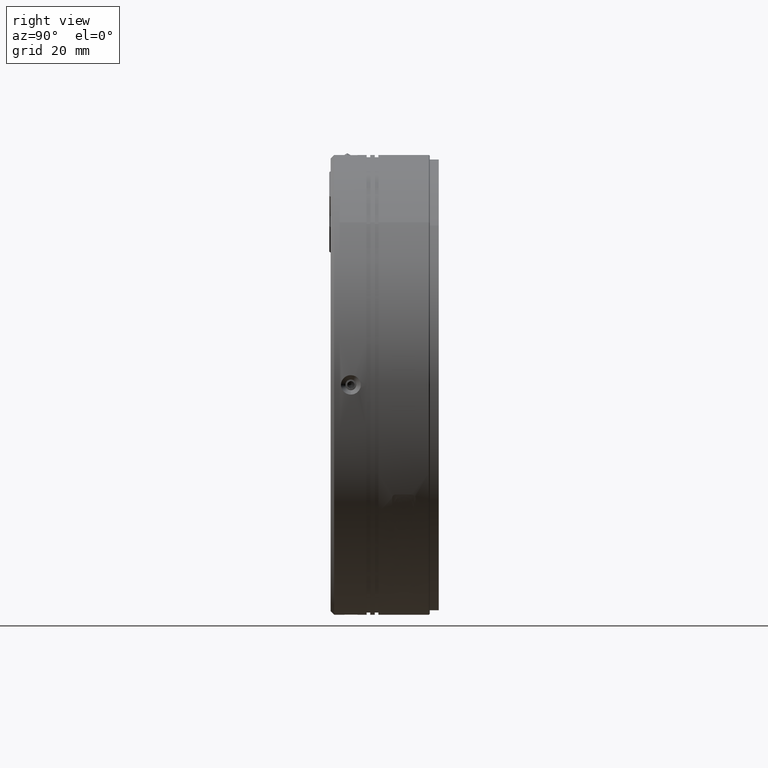
[diagram: clean part render]
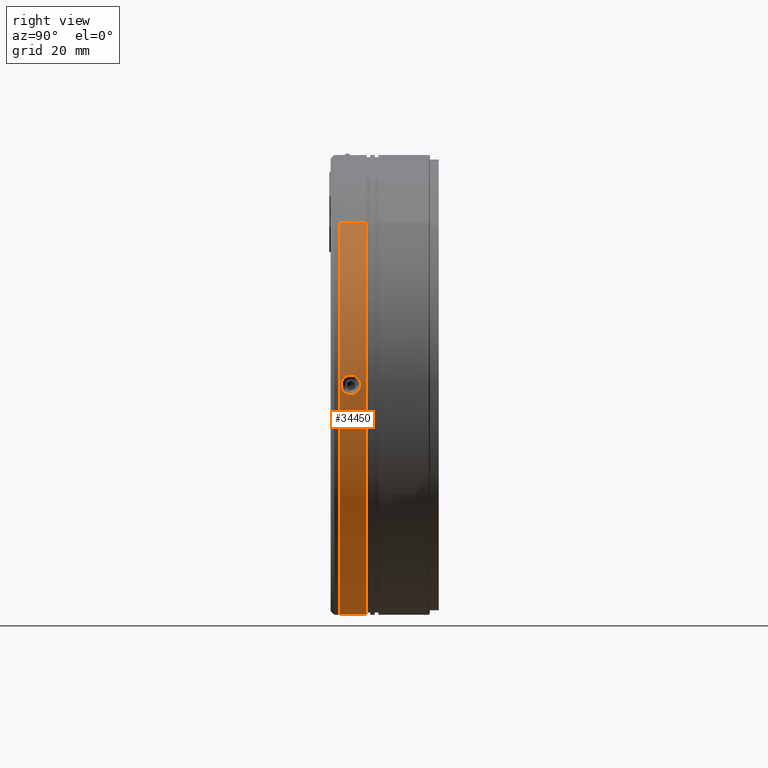
[diagram: same view with one face highlighted and labeled with its STEP entity id]
A machine part, right view. The second image highlights one B-rep face of the part: STEP entity #34450.
In plain terms, the highlighted cylindrical surface (partial cylindrical patch) has radius 51 mm, axis along (0, 1, -0).
Its self-contained STEP definition (entity closure, byte-faithful):
#259 = CARTESIAN_POINT ( 'NONE',  ( -2.154472316353459100, 5.763396143676595300, -50.95447231635380100 ) ) ;
#604 = CARTESIAN_POINT ( 'NONE',  ( -0.2852268073737361200, 3.721661594997705900, -50.99939401691447200 ) ) ;
#919 = CARTESIAN_POINT ( 'NONE',  ( 1.939828432637411100, 4.939502459371927200, -50.96312275751676400 ) ) ;
#3167 = CARTESIAN_POINT ( 'NONE',  ( 50.96312404013315200, 6.874862725587961500, 1.939794906951454800 ) ) ;
#3476 = CARTESIAN_POINT ( 'NONE',  ( 50.99538983723117300, 7.993454313968416400, -0.6982968416029308200 ) ) ;
#4078 = CARTESIAN_POINT ( 'NONE',  ( 50.98894425759989000, 3.989773638397464700, -1.093377146963826900 ) ) ;
#4397 = CARTESIAN_POINT ( 'NONE',  ( 50.97404499597960400, 4.461387977884344400, 1.629917448090237200 ) ) ;
#5007 = EDGE_LOOP ( 'NONE', ( #67706, #91935, #29423, #58132 ) ) ;
#5067 = CARTESIAN_POINT ( 'NONE',  ( 0.5648198454437068900, 8.035159317894237300, -50.99706386613183900 ) ) ;
#5393 = CARTESIAN_POINT ( 'NONE',  ( -1.873114926607444900, 7.003366693501809500, -50.96564966620793100 ) ) ;
#7616 = CARTESIAN_POINT ( 'NONE',  ( -2.154472316353456000, 5.907147174518511800, -50.95447231635380100 ) ) ;
#7751 = CYLINDRICAL_SURFACE ( 'NONE', #67334, 51.00000000000002100 ) ;
#7896 = CARTESIAN_POINT ( 'NONE',  ( -36.06244584051352600, 9.407147174518513600, -36.06244584051400900 ) ) ;
#7934 = CARTESIAN_POINT ( 'NONE',  ( 0.1403220791344371200, 3.707017445453936400, -51.00000536473358900 ) ) ;
#8228 = CARTESIAN_POINT ( 'NONE',  ( 2.154472316354134200, 5.619634756492583700, -50.95447231635381500 ) ) ;
#9860 = CARTESIAN_POINT ( 'NONE',  ( 3.317125359626537400E-013, 3.407147174518513600, 2.765813746307307400E-015 ) ) ;
#10440 = CARTESIAN_POINT ( 'NONE',  ( 50.97106247840371700, 7.240207170799828300, 1.719538270457489100 ) ) ;
#10751 = CARTESIAN_POINT ( 'NONE',  ( 50.98854209128253200, 7.811771279128765700, -1.087304250711857800 ) ) ;
#11047 = CARTESIAN_POINT ( 'NONE',  ( 50.95447231635414200, 5.763396143676660100, -2.154472316353622600 ) ) ;
#11343 = CARTESIAN_POINT ( 'NONE',  ( 50.99706386613215200, 3.779135031142793800, -0.5648198454432190600 ) ) ;
#11668 = CARTESIAN_POINT ( 'NONE',  ( 50.96564966620827200, 4.810927655535165200, 1.873114926607935000 ) ) ;
#12348 = CARTESIAN_POINT ( 'NONE',  ( 0.1441949763679270800, 8.107015667457769600, -50.99999456174028000 ) ) ;
#12655 = CARTESIAN_POINT ( 'NONE',  ( -2.098892007227033400, 6.479478496058003900, -50.95690252090638200 ) ) ;
#12774 = AXIS2_PLACEMENT_3D ( 'NONE', #32687, #83469, #39995 ) ;
#14741 = CIRCLE ( 'NONE', #12774, 51.00000000000002100 ) ;
#14883 = CARTESIAN_POINT ( 'NONE',  ( -2.045849818407261100, 5.202980060670240500, -50.95897678261917500 ) ) ;
#15212 = CARTESIAN_POINT ( 'NONE',  ( 0.5627570195043855000, 3.778616108468916900, -50.99708475629208200 ) ) ;
#17181 = DIRECTION ( 'NONE',  ( 1.679007573354061900E-019, 1.000000000000000000, -1.540743955509788700E-033 ) ) ;
#17794 = CARTESIAN_POINT ( 'NONE',  ( 50.98293755735451100, 7.658280343859246400, 1.333799639047215300 ) ) ;
#18117 = CARTESIAN_POINT ( 'NONE',  ( 50.98001507630412700, 7.557870552635795200, -1.431068467805254500 ) ) ;
#18706 = CARTESIAN_POINT ( 'NONE',  ( 50.99999456174060700, 3.707278681579249600, -0.1441949763674427500 ) ) ;
#19029 = CARTESIAN_POINT ( 'NONE',  ( 50.95690252090671600, 5.334815852978958400, 2.098892007227542800 ) ) ;
#19108 = CIRCLE ( 'NONE', #46445, 51.00000000000002100 ) ;
#19379 = CARTESIAN_POINT ( 'NONE',  ( 2.086788079380743600, 6.472420659682517100, -50.95729629890006200 ) ) ;
#19692 = CARTESIAN_POINT ( 'NONE',  ( -0.2845645091286919700, 8.092673076609164800, -50.99939580175028900 ) ) ;
#20029 = CARTESIAN_POINT ( 'NONE',  ( -2.154472316353456000, 5.907147174518511800, -50.95447231635380100 ) ) ;
#22275 = CARTESIAN_POINT ( 'NONE',  ( -1.874645505294986900, 4.813598729787168300, -50.96559355359598700 ) ) ;
#22589 = CARTESIAN_POINT ( 'NONE',  ( 0.9621037295044077000, 3.933365850457388700, -50.99109490434396000 ) ) ;
#25149 = CARTESIAN_POINT ( 'NONE',  ( 50.99532744252931600, 7.991849911854710200, 0.7025358010626433500 ) ) ;
#25457 = CARTESIAN_POINT ( 'NONE',  ( 50.97110671548087900, 7.241926942616546000, -1.718221646358410600 ) ) ;
#25682 = B_SPLINE_CURVE_WITH_KNOTS ( 'NONE', 3,
 ( #7616, #259, #79453, #58410, #14883, #65754, #22275, #73059, #29593, #80385, #36891, #87628, #44181, #604, #51476, #7934, #58742, #15212, #66081, #22589, #73377, #29906, #80712, #37218, #87974, #44500, #919, #51786, #8228, #59050 ),
 .UNSPECIFIED., .F., .F.,
 ( 4, 2, 2, 2, 2, 2, 2, 2, 2, 2, 2, 2, 2, 2, 4 ),
 ( 6.396903074562316500E-017, 0.0004268718552336658400, 0.0008537437104672677100, 0.001280615565700869500, 0.001707487420934471500, 0.002561231131401674000, 0.002988102986635275500, 0.003414974841868877000, 0.003841846697102478900, 0.004268718552336080900, 0.004695590407569683200, 0.005122462262803285600, 0.005549334118036888800, 0.005976205973270491200, 0.006829949683737694200 ),
 .UNSPECIFIED. ) ;
#25762 = CARTESIAN_POINT ( 'NONE',  ( 50.95729629890040300, 5.341873689354510900, -2.086788079380240900 ) ) ;
#26069 = CARTESIAN_POINT ( 'NONE',  ( 50.99939580175062300, 3.721621272427849000, 0.2845645091291707000 ) ) ;
#26372 = CARTESIAN_POINT ( 'NONE',  ( 50.95447231635412100, 5.907147174518511800, 2.154472316353976100 ) ) ;
#26713 = CARTESIAN_POINT ( 'NONE',  ( 1.939794906951597600, 6.874862725587965100, -50.96312404013281100 ) ) ;
#26897 = VERTEX_POINT ( 'NONE', #7896 ) ;
#27034 = CARTESIAN_POINT ( 'NONE',  ( -0.6982968416028165800, 7.993454313968391600, -50.99538983723083900 ) ) ;
#29423 = ORIENTED_EDGE ( 'NONE', *, *, #44502, .T. ) ;
#29438 = LINE ( 'NONE', #67311, #46458 ) ;
#29593 = CARTESIAN_POINT ( 'NONE',  ( -1.629677659519799700, 4.461215960852939600, -50.97405111024246300 ) ) ;
#29906 = CARTESIAN_POINT ( 'NONE',  ( 1.320949418007542100, 4.163359933027793500, -50.98302411355312100 ) ) ;
#31844 = VERTEX_POINT ( 'NONE', #68629 ) ;
#32138 = CARTESIAN_POINT ( 'NONE',  ( 50.95447231635412100, 5.907147174518511800, 2.154472316353976100 ) ) ;
#32464 = CARTESIAN_POINT ( 'NONE',  ( 50.99939401691477800, 8.092632754039303900, 0.2852268073743209900 ) ) ;
#32687 = CARTESIAN_POINT ( 'NONE',  ( 3.317135433671977200E-013, 9.407147174518513600, 2.765813746307307400E-015 ) ) ;
#32778 = CARTESIAN_POINT ( 'NONE',  ( 50.96312275751709800, 6.874791889665118600, -1.939828432636891500 ) ) ;
#33066 = CARTESIAN_POINT ( 'NONE',  ( 50.96312404013316000, 4.939431623449064700, -1.939794906951090500 ) ) ;
#33359 = CARTESIAN_POINT ( 'NONE',  ( 50.99538983723116600, 3.820840035068613800, 0.6982968416032950800 ) ) ;
#34027 = CARTESIAN_POINT ( 'NONE',  ( 1.719538270457630700, 7.240207170799836300, -50.97106247840337500 ) ) ;
#34344 = CARTESIAN_POINT ( 'NONE',  ( -1.087304250711743200, 7.811771279128739000, -50.98854209128219100 ) ) ;
#34450 = ADVANCED_FACE ( 'NONE', ( #72553, #91863, #36235 ), #7751, .T. ) ;
#36235 = FACE_BOUND ( 'NONE', #36972, .T. ) ;
#36891 = CARTESIAN_POINT ( 'NONE',  ( -1.093377146963598700, 3.989773638397421200, -50.98894425759952000 ) ) ;
#36972 = EDGE_LOOP ( 'NONE', ( #59850, #61777 ) ) ;
#37218 = CARTESIAN_POINT ( 'NONE',  ( 1.629917448090406800, 4.461387977884367500, -50.97404499597929100 ) ) ;
#37283 = EDGE_CURVE ( 'NONE', #73709, #42928, #25682, .T. ) ;
#37813 = B_SPLINE_CURVE_WITH_KNOTS ( 'NONE', 3,
 ( #69205, #11047, #46707, #25762, #76556, #33066, #83838, #40383, #91116, #47640, #4078, #54888, #11343, #62243, #18706, #69522, #26069, #76880, #33359, #84148, #40701, #91450, #47962, #4397, #55207, #11668, #62555, #19029, #69837, #26372 ),
 .UNSPECIFIED., .F., .F.,
 ( 4, 2, 2, 2, 2, 2, 2, 2, 2, 2, 2, 2, 2, 2, 4 ),
 ( 8.673617379884035500E-019, 0.0004268718552336112500, 0.0008537437104672216400, 0.001280615565700831800, 0.001707487420934442000, 0.002561231131401662700, 0.002988102986635273800, 0.003414974841868884800, 0.003841846697102495400, 0.004268718552336106900, 0.004695590407569717900, 0.005122462262803328900, 0.005549334118036940000, 0.005976205973270551900, 0.006829949683737773100 ),
 .UNSPECIFIED. ) ;
#38419 = VERTEX_POINT ( 'NONE', #76494 ) ;
#39134 = LINE ( 'NONE', #92179, #56096 ) ;
#39461 = CARTESIAN_POINT ( 'NONE',  ( 50.95505573655418600, 6.192683583496547700, 2.140800193111952700 ) ) ;
#39780 = CARTESIAN_POINT ( 'NONE',  ( 51.00000536473391600, 8.107276903583095200, -0.1403220791338598800 ) ) ;
#39995 = DIRECTION ( 'NONE',  ( -0.7071067811865460200, 0.0000000000000000000, -0.7071067811865489100 ) ) ;
#40079 = CARTESIAN_POINT ( 'NONE',  ( 50.95447231635413500, 6.194638880233036100, -2.154472316353621200 ) ) ;
#40383 = CARTESIAN_POINT ( 'NONE',  ( 50.97106247840371700, 4.574087178237195200, -1.719538270457126000 ) ) ;
#40698 = CARTESIAN_POINT ( 'NONE',  ( 3.317125359626537400E-013, 3.407147174518513600, 2.765813746307307400E-015 ) ) ;
#40701 = CARTESIAN_POINT ( 'NONE',  ( 50.98854209128251800, 4.002523069908257900, 1.087304250712223000 ) ) ;
#41048 = CARTESIAN_POINT ( 'NONE',  ( 2.154472316354134600, 6.050898205360368800, -50.95447231635380800 ) ) ;
#41328 = CARTESIAN_POINT ( 'NONE',  ( 1.333799639047349200, 7.658280343859257000, -50.98293755735417000 ) ) ;
#41641 = CARTESIAN_POINT ( 'NONE',  ( -1.431068467805141100, 7.557870552635762400, -50.98001507630377900 ) ) ;
#41956 = CARTESIAN_POINT ( 'NONE',  ( -2.154472316353456000, 5.907147174518511800, -50.95447231635380100 ) ) ;
#42150 = EDGE_CURVE ( 'NONE', #45964, #51609, #37813, .T. ) ;
#42928 = VERTEX_POINT ( 'NONE', #58137 ) ;
#43749 = ORIENTED_EDGE ( 'NONE', *, *, #77687, .T. ) ;
#44181 = CARTESIAN_POINT ( 'NONE',  ( -0.5648198454429918000, 3.779135031142776900, -50.99706386613184600 ) ) ;
#44500 = CARTESIAN_POINT ( 'NONE',  ( 1.873114926608095500, 4.810927655535182100, -50.96564966620794500 ) ) ;
#44502 = EDGE_CURVE ( 'NONE', #82853, #26897, #39134, .T. ) ;
#45964 = VERTEX_POINT ( 'NONE', #88942 ) ;
#46273 = EDGE_CURVE ( 'NONE', #31844, #82853, #19108, .T. ) ;
#46428 = DIRECTION ( 'NONE',  ( -0.7071067811865460200, 0.0000000000000000000, -0.7071067811865489100 ) ) ;
#46445 = AXIS2_PLACEMENT_3D ( 'NONE', #40698, #91447, #47961 ) ;
#46458 = VECTOR ( 'NONE', #52695, 1000.000000000000000 ) ;
#46707 = CARTESIAN_POINT ( 'NONE',  ( 50.95505573655422200, 5.621610765540476800, -2.140800193111596100 ) ) ;
#46724 = CARTESIAN_POINT ( 'NONE',  ( 50.95897678261949400, 6.611314288366672900, 2.045849818407819800 ) ) ;
#47020 = CARTESIAN_POINT ( 'NONE',  ( 50.99708475629242300, 8.035678240568119100, -0.5627570195038171800 ) ) ;
#47640 = CARTESIAN_POINT ( 'NONE',  ( 50.98293755735450400, 4.156014005177781600, -1.333799639046848700 ) ) ;
#47961 = DIRECTION ( 'NONE',  ( -0.7071067811865460200, 0.0000000000000000000, -0.7071067811865489100 ) ) ;
#47962 = CARTESIAN_POINT ( 'NONE',  ( 50.98001507630411300, 4.256423796401226600, 1.431068467805620200 ) ) ;
#48630 = CARTESIAN_POINT ( 'NONE',  ( 0.7025358010627704700, 7.991849911854719000, -50.99532744252899600 ) ) ;
#48936 = CARTESIAN_POINT ( 'NONE',  ( -1.718221646358286000, 7.241926942616501600, -50.97110671548055200 ) ) ;
#51476 = CARTESIAN_POINT ( 'NONE',  ( -0.1441949763672226700, 3.707278681579251300, -50.99999456174029400 ) ) ;
#51609 = VERTEX_POINT ( 'NONE', #88772 ) ;
#51786 = CARTESIAN_POINT ( 'NONE',  ( 2.098892007227693300, 5.334815852978971800, -50.95690252090638200 ) ) ;
#52695 = DIRECTION ( 'NONE',  ( 1.679007573354061700E-019, 1.000000000000000000, -1.540743955509788700E-033 ) ) ;
#52857 = EDGE_LOOP ( 'NONE', ( #43749, #79188 ) ) ;
#53983 = CARTESIAN_POINT ( 'NONE',  ( 50.96559355359630000, 7.000695619249762900, 1.874645505295554600 ) ) ;
#54296 = CARTESIAN_POINT ( 'NONE',  ( 50.99109490434430100, 7.880928498579664600, -0.9621037295038525900 ) ) ;
#54888 = CARTESIAN_POINT ( 'NONE',  ( 50.99532744252933000, 3.822444437182321400, -0.7025358010622772000 ) ) ;
#55207 = CARTESIAN_POINT ( 'NONE',  ( 50.97110671548087200, 4.572367406420478500, 1.718221646358771200 ) ) ;
#55869 = CARTESIAN_POINT ( 'NONE',  ( 0.2852268073744432300, 8.092632754039314600, -50.99939401691446500 ) ) ;
#56096 = VECTOR ( 'NONE', #62953, 1000.000000000000000 ) ;
#56173 = CARTESIAN_POINT ( 'NONE',  ( -1.939828432636754500, 6.874791889665061700, -50.96312275751674300 ) ) ;
#58132 = ORIENTED_EDGE ( 'NONE', *, *, #79877, .T. ) ;
#58137 = CARTESIAN_POINT ( 'NONE',  ( 2.154472316354124000, 5.907147174518511800, -50.95447231635380100 ) ) ;
#58410 = CARTESIAN_POINT ( 'NONE',  ( -2.086788079380045100, 5.341873689354396300, -50.95729629890004700 ) ) ;
#58742 = CARTESIAN_POINT ( 'NONE',  ( 0.2845645091293820800, 3.721621272427863700, -50.99939580175028900 ) ) ;
#59050 = CARTESIAN_POINT ( 'NONE',  ( 2.154472316354124000, 5.907147174518511800, -50.95447231635380100 ) ) ;
#59850 = ORIENTED_EDGE ( 'NONE', *, *, #79439, .T. ) ;
#61301 = CARTESIAN_POINT ( 'NONE',  ( 50.97405111024278300, 7.353078388184011200, 1.629677659520386600 ) ) ;
#61614 = CARTESIAN_POINT ( 'NONE',  ( 50.98302411355346900, 7.650934416009262100, -1.320949418006999800 ) ) ;
#61777 = ORIENTED_EDGE ( 'NONE', *, *, #37283, .T. ) ;
#62243 = CARTESIAN_POINT ( 'NONE',  ( 50.99939401691478500, 3.721661594997711200, -0.2852268073739586100 ) ) ;
#62555 = CARTESIAN_POINT ( 'NONE',  ( 50.96312275751709100, 4.939502459371905900, 1.939828432637254400 ) ) ;
#62896 = CARTESIAN_POINT ( 'NONE',  ( 2.140800193112099700, 6.192683583496548600, -50.95505573655386700 ) ) ;
#62953 = DIRECTION ( 'NONE',  ( 1.679007573354061700E-019, 1.000000000000000000, -1.540743955509788700E-033 ) ) ;
#63215 = CARTESIAN_POINT ( 'NONE',  ( -0.1403220791337420100, 8.107276903583089800, -51.00000536473359600 ) ) ;
#63533 = CARTESIAN_POINT ( 'NONE',  ( -2.154472316353471100, 6.194638880232972200, -50.95447231635380800 ) ) ;
#65754 = CARTESIAN_POINT ( 'NONE',  ( -1.939794906950884600, 4.939431623448968800, -50.96312404013283300 ) ) ;
#66081 = CARTESIAN_POINT ( 'NONE',  ( 0.6982968416034940300, 3.820840035068636900, -50.99538983723083900 ) ) ;
#67311 = CARTESIAN_POINT ( 'NONE',  ( 36.06244584051418700, 3.407147174518513600, 36.06244584051400900 ) ) ;
#67334 = AXIS2_PLACEMENT_3D ( 'NONE', #9860, #17181, #46428 ) ;
#67706 = ORIENTED_EDGE ( 'NONE', *, *, #70202, .F. ) ;
#68595 = CARTESIAN_POINT ( 'NONE',  ( 50.98894425759988300, 7.824520710639566400, 1.093377146964194600 ) ) ;
#68629 = CARTESIAN_POINT ( 'NONE',  ( 36.06244584051417900, 3.407147174518513600, 36.06244584051400200 ) ) ;
#68916 = CARTESIAN_POINT ( 'NONE',  ( 50.97404499597961100, 7.352906371152678300, -1.629917448089871700 ) ) ;
#69205 = CARTESIAN_POINT ( 'NONE',  ( 50.95447231635413500, 5.907147174518511800, -2.154472316353613700 ) ) ;
#69522 = CARTESIAN_POINT ( 'NONE',  ( 51.00000536473391600, 3.707017445453927100, 0.1403220791342240900 ) ) ;
#69837 = CARTESIAN_POINT ( 'NONE',  ( 50.95447231635412800, 5.619634756492575700, 2.154472316353985000 ) ) ;
#70199 = CARTESIAN_POINT ( 'NONE',  ( 2.045849818407965000, 6.611314288366680900, -50.95897678261917500 ) ) ;
#70202 = EDGE_CURVE ( 'NONE', #31844, #38419, #29438, .T. ) ;
#70530 = CARTESIAN_POINT ( 'NONE',  ( -0.5627570195037037100, 8.035678240568112000, -50.99708475629208900 ) ) ;
#72553 = FACE_OUTER_BOUND ( 'NONE', #5007, .T. ) ;
#73059 = CARTESIAN_POINT ( 'NONE',  ( -1.719538270456912900, 4.574087178237117100, -50.97106247840339000 ) ) ;
#73377 = CARTESIAN_POINT ( 'NONE',  ( 1.087304250712408000, 4.002523069908286300, -50.98854209128219100 ) ) ;
#73709 = VERTEX_POINT ( 'NONE', #41956 ) ;
#75633 = CARTESIAN_POINT ( 'NONE',  ( 50.95447231635414200, 6.050898205360367000, 2.154472316353985400 ) ) ;
#75949 = CARTESIAN_POINT ( 'NONE',  ( 50.99706386613216600, 8.035159317894226700, 0.5648198454435823200 ) ) ;
#76269 = CARTESIAN_POINT ( 'NONE',  ( 50.96564966620829300, 7.003366693501861000, -1.873114926607574600 ) ) ;
#76494 = CARTESIAN_POINT ( 'NONE',  ( 36.06244584051417900, 9.407147174518513600, 36.06244584051400200 ) ) ;
#76556 = CARTESIAN_POINT ( 'NONE',  ( 50.95897678261950100, 5.202980060670349800, -2.045849818407456100 ) ) ;
#76880 = CARTESIAN_POINT ( 'NONE',  ( 50.99708475629243100, 3.778616108468897400, 0.5627570195041826700 ) ) ;
#77512 = CARTESIAN_POINT ( 'NONE',  ( 1.874645505295698300, 7.000695619249768200, -50.96559355359595900 ) ) ;
#77687 = EDGE_CURVE ( 'NONE', #51609, #45964, #84075, .T. ) ;
#77844 = CARTESIAN_POINT ( 'NONE',  ( -0.9621037295037389000, 7.880928498579639700, -50.99109490434398100 ) ) ;
#79188 = ORIENTED_EDGE ( 'NONE', *, *, #42150, .T. ) ;
#79439 = EDGE_CURVE ( 'NONE', #42928, #73709, #88849, .T. ) ;
#79453 = CARTESIAN_POINT ( 'NONE',  ( -2.140800193111415800, 5.621610765540355100, -50.95505573655387400 ) ) ;
#79877 = EDGE_CURVE ( 'NONE', #26897, #38419, #14741, .T. ) ;
#80385 = CARTESIAN_POINT ( 'NONE',  ( -1.333799639046622000, 4.156014005177723000, -50.98293755735416300 ) ) ;
#80712 = CARTESIAN_POINT ( 'NONE',  ( 1.431068467805796600, 4.256423796401252300, -50.98001507630377900 ) ) ;
#82853 = VERTEX_POINT ( 'NONE', #84215 ) ;
#83245 = CARTESIAN_POINT ( 'NONE',  ( 50.99999456174060000, 8.107015667457774900, 0.1441949763678069500 ) ) ;
#83469 = DIRECTION ( 'NONE',  ( -1.679007573354061900E-019, -1.000000000000000000, 1.540743955509788700E-033 ) ) ;
#83556 = CARTESIAN_POINT ( 'NONE',  ( 50.95690252090672300, 6.479478496058065100, -2.098892007227179900 ) ) ;
#83838 = CARTESIAN_POINT ( 'NONE',  ( 50.96559355359631400, 4.813598729787259800, -1.874645505295192500 ) ) ;
#84075 = B_SPLINE_CURVE_WITH_KNOTS ( 'NONE', 3,
 ( #32138, #75633, #39461, #90211, #46724, #3167, #53983, #10440, #61301, #17794, #68595, #25149, #75949, #32464, #83245, #39780, #90500, #47020, #3476, #54296, #10751, #61614, #18117, #68916, #25457, #76269, #32778, #83556, #40079, #90823 ),
 .UNSPECIFIED., .F., .F.,
 ( 4, 2, 2, 2, 2, 2, 2, 2, 2, 2, 2, 2, 2, 2, 4 ),
 ( 0.006829949683737773100, 0.007256806162831982500, 0.007683662641926191800, 0.008110519121020400400, 0.008537375600114610600, 0.009391088558303029400, 0.009817945037397239600, 0.01024480151649144800, 0.01067165799558565800, 0.01109851447467986900, 0.01152537095377407900, 0.01195222743286828900, 0.01237908391196249800, 0.01280594039105671000, 0.01365965334924512700 ),
 .UNSPECIFIED. ) ;
#84148 = CARTESIAN_POINT ( 'NONE',  ( 50.99109490434428700, 3.933365850457359400, 0.9621037295042166300 ) ) ;
#84215 = CARTESIAN_POINT ( 'NONE',  ( -36.06244584051351900, 3.407147174518513600, -36.06244584051400200 ) ) ;
#84818 = CARTESIAN_POINT ( 'NONE',  ( 1.629677659520524200, 7.353078388184020900, -50.97405111024245600 ) ) ;
#85134 = CARTESIAN_POINT ( 'NONE',  ( -1.320949418006882600, 7.650934416009224700, -50.98302411355312100 ) ) ;
#87628 = CARTESIAN_POINT ( 'NONE',  ( -0.7025358010620500500, 3.822444437182297400, -50.99532744252901000 ) ) ;
#87974 = CARTESIAN_POINT ( 'NONE',  ( 1.718221646358936800, 4.572367406420503300, -50.97110671548055200 ) ) ;
#88772 = CARTESIAN_POINT ( 'NONE',  ( 50.95447231635412100, 5.907147174518511800, 2.154472316353976100 ) ) ;
#88849 = B_SPLINE_CURVE_WITH_KNOTS ( 'NONE', 3,
 ( #91792, #41048, #62896, #19379, #70199, #26713, #77512, #34027, #84818, #41328, #92130, #48630, #5067, #55869, #12348, #63215, #19692, #70530, #27034, #77844, #34344, #85134, #41641, #92418, #48936, #5393, #56173, #12655, #63533, #20029 ),
 .UNSPECIFIED., .F., .F.,
 ( 4, 2, 2, 2, 2, 2, 2, 2, 2, 2, 2, 2, 2, 2, 4 ),
 ( 0.006829949683737694200, 0.007256806162831907000, 0.007683662641926120700, 0.008110519121020332700, 0.008537375600114546400, 0.009391088558302972100, 0.009817945037397185800, 0.01024480151649139800, 0.01067165799558561000, 0.01109851447467982400, 0.01152537095377403600, 0.01195222743286824900, 0.01237908391196246300, 0.01280594039105667500, 0.01365965334924510100 ),
 .UNSPECIFIED. ) ;
#88942 = CARTESIAN_POINT ( 'NONE',  ( 50.95447231635413500, 5.907147174518511800, -2.154472316353613700 ) ) ;
#90211 = CARTESIAN_POINT ( 'NONE',  ( 50.95729629890038800, 6.472420659682510900, 2.086788079380597500 ) ) ;
#90500 = CARTESIAN_POINT ( 'NONE',  ( 50.99939580175062300, 8.092673076609163000, -0.2845645091288053800 ) ) ;
#90823 = CARTESIAN_POINT ( 'NONE',  ( 50.95447231635413500, 5.907147174518511800, -2.154472316353613700 ) ) ;
#91116 = CARTESIAN_POINT ( 'NONE',  ( 50.97405111024278300, 4.461215960853014200, -1.629677659520019100 ) ) ;
#91447 = DIRECTION ( 'NONE',  ( 1.679007573354061900E-019, 1.000000000000000000, -1.540743955509788700E-033 ) ) ;
#91450 = CARTESIAN_POINT ( 'NONE',  ( 50.98302411355344800, 4.163359933027762400, 1.320949418007364400 ) ) ;
#91792 = CARTESIAN_POINT ( 'NONE',  ( 2.154472316354124000, 5.907147174518511800, -50.95447231635380100 ) ) ;
#91863 = FACE_BOUND ( 'NONE', #52857, .T. ) ;
#91935 = ORIENTED_EDGE ( 'NONE', *, *, #46273, .T. ) ;
#92130 = CARTESIAN_POINT ( 'NONE',  ( 1.093377146964326800, 7.824520710639579800, -50.98894425759955600 ) ) ;
#92179 = CARTESIAN_POINT ( 'NONE',  ( -36.06244584051352600, 3.407147174518513600, -36.06244584051400900 ) ) ;
#92418 = CARTESIAN_POINT ( 'NONE',  ( -1.629917448089753800, 7.352906371152641900, -50.97404499597927700 ) ) ;